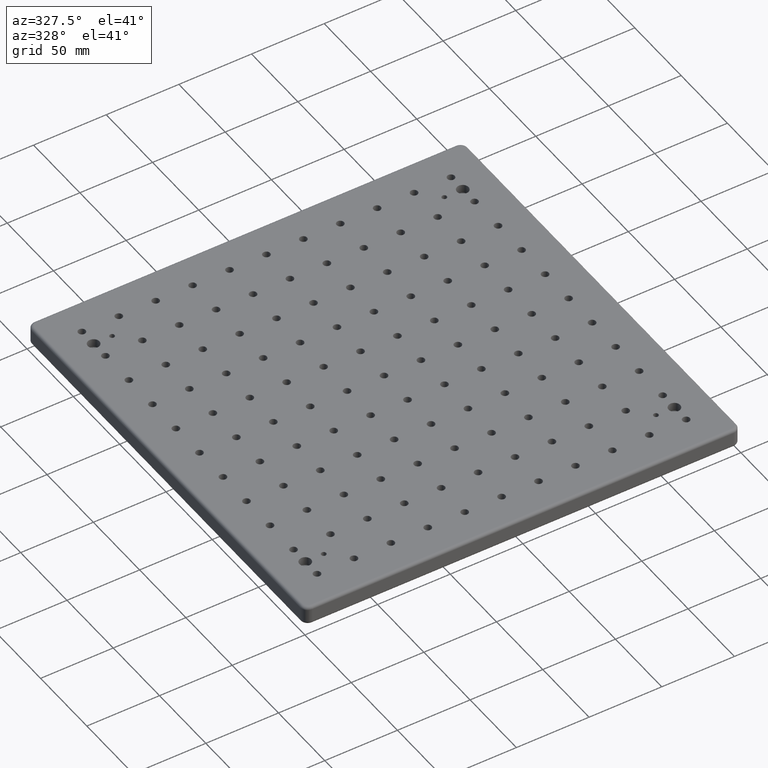
[diagram: clean part render]
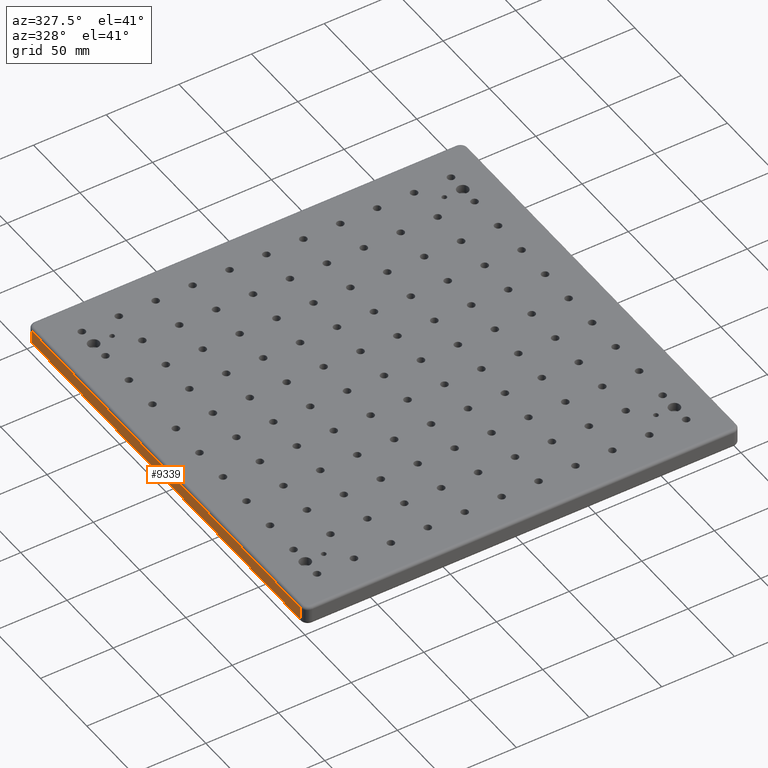
[diagram: same view with one face highlighted and labeled with its STEP entity id]
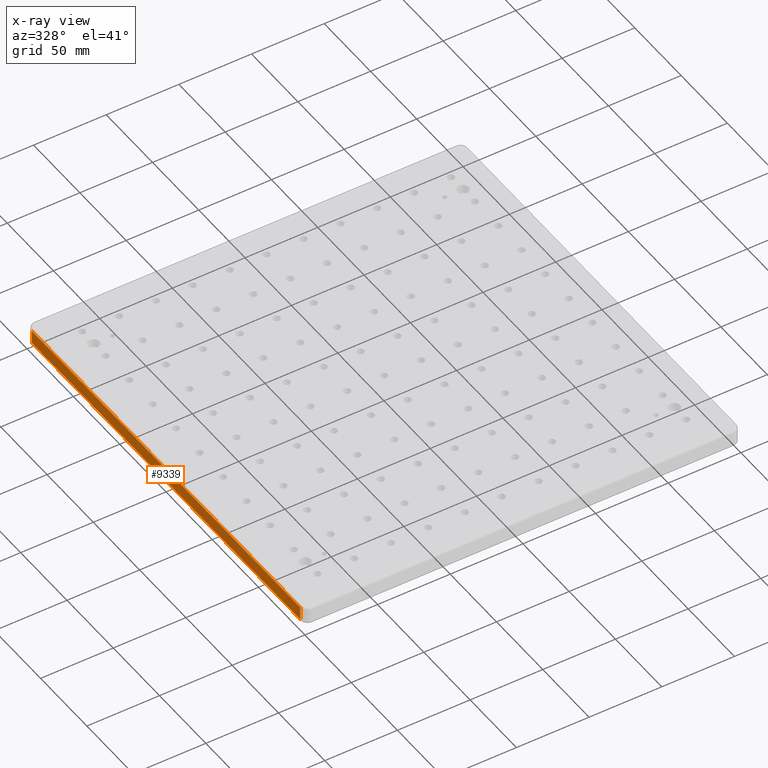
[diagram: x-ray of the same camera — body ghosted, the highlighted face saturated]
A machine part, auxiliary view. The second image highlights one B-rep face of the part: STEP entity #9339.
The next image is the same camera in x-ray: the body ghosted, the highlighted face saturated — about 0% of this face is hidden behind the body in this view.
In plain terms, the highlighted planar face has unit normal (-1, 0, 0).
Its self-contained STEP definition (entity closure, byte-faithful):
#107 = DIRECTION ( 'NONE',  ( 0.0000000000000000000, 0.0000000000000000000, 1.000000000000000000 ) ) ;
#515 = DIRECTION ( 'NONE',  ( 0.0000000000000000000, 0.0000000000000000000, 1.000000000000000000 ) ) ;
#654 = LINE ( 'NONE', #3809, #6967 ) ;
#803 = CARTESIAN_POINT ( 'NONE',  ( 0.0000000000000000000, 295.0000000000000000, -2.000000000000000000 ) ) ;
#866 = LINE ( 'NONE', #5954, #5882 ) ;
#1233 = EDGE_CURVE ( 'NONE', #8120, #8187, #6702, .T. ) ;
#1700 = DIRECTION ( 'NONE',  ( 0.0000000000000000000, -1.000000000000000000, 0.0000000000000000000 ) ) ;
#1835 = DIRECTION ( 'NONE',  ( -0.0000000000000000000, 1.000000000000000000, -0.0000000000000000000 ) ) ;
#2207 = EDGE_CURVE ( 'NONE', #8187, #3940, #5777, .T. ) ;
#2390 = ORIENTED_EDGE ( 'NONE', *, *, #3640, .T. ) ;
#2641 = DIRECTION ( 'NONE',  ( -1.000000000000000000, 0.0000000000000000000, 0.0000000000000000000 ) ) ;
#2963 = AXIS2_PLACEMENT_3D ( 'NONE', #5043, #2641, #107 ) ;
#3640 = EDGE_CURVE ( 'NONE', #3940, #6810, #654, .T. ) ;
#3809 = CARTESIAN_POINT ( 'NONE',  ( 0.0000000000000000000, 4.999999999999998200, -13.00000000000000000 ) ) ;
#3940 = VERTEX_POINT ( 'NONE', #9248 ) ;
#4009 = ORIENTED_EDGE ( 'NONE', *, *, #2207, .T. ) ;
#4373 = CARTESIAN_POINT ( 'NONE',  ( 0.0000000000000000000, 4.999999999999998200, -2.000000000000000000 ) ) ;
#5043 = CARTESIAN_POINT ( 'NONE',  ( 0.0000000000000000000, 0.0000000000000000000, -13.00000000000000000 ) ) ;
#5424 = VECTOR ( 'NONE', #9279, 1000.000000000000000 ) ;
#5777 = LINE ( 'NONE', #6613, #10385 ) ;
#5882 = VECTOR ( 'NONE', #1835, 1000.000000000000000 ) ;
#5898 = ORIENTED_EDGE ( 'NONE', *, *, #7290, .T. ) ;
#5954 = CARTESIAN_POINT ( 'NONE',  ( 0.0000000000000000000, 295.0000000000000000, -2.000000000000000000 ) ) ;
#6574 = PLANE ( 'NONE',  #2963 ) ;
#6613 = CARTESIAN_POINT ( 'NONE',  ( 0.0000000000000000000, 0.0000000000000000000, -11.00000000000000000 ) ) ;
#6702 = LINE ( 'NONE', #7770, #5424 ) ;
#6810 = VERTEX_POINT ( 'NONE', #4373 ) ;
#6967 = VECTOR ( 'NONE', #515, 1000.000000000000000 ) ;
#7290 = EDGE_CURVE ( 'NONE', #6810, #8120, #866, .T. ) ;
#7770 = CARTESIAN_POINT ( 'NONE',  ( 0.0000000000000000000, 295.0000000000000000, -13.00000000000000000 ) ) ;
#7810 = ORIENTED_EDGE ( 'NONE', *, *, #1233, .T. ) ;
#8120 = VERTEX_POINT ( 'NONE', #803 ) ;
#8187 = VERTEX_POINT ( 'NONE', #9749 ) ;
#9248 = CARTESIAN_POINT ( 'NONE',  ( 0.0000000000000000000, 4.999999999999998200, -11.00000000000000000 ) ) ;
#9252 = EDGE_LOOP ( 'NONE', ( #7810, #4009, #2390, #5898 ) ) ;
#9279 = DIRECTION ( 'NONE',  ( -0.0000000000000000000, -0.0000000000000000000, -1.000000000000000000 ) ) ;
#9339 = ADVANCED_FACE ( 'NONE', ( #10330 ), #6574, .T. ) ;
#9749 = CARTESIAN_POINT ( 'NONE',  ( 0.0000000000000000000, 295.0000000000000000, -11.00000000000000000 ) ) ;
#10330 = FACE_OUTER_BOUND ( 'NONE', #9252, .T. ) ;
#10385 = VECTOR ( 'NONE', #1700, 1000.000000000000000 ) ;